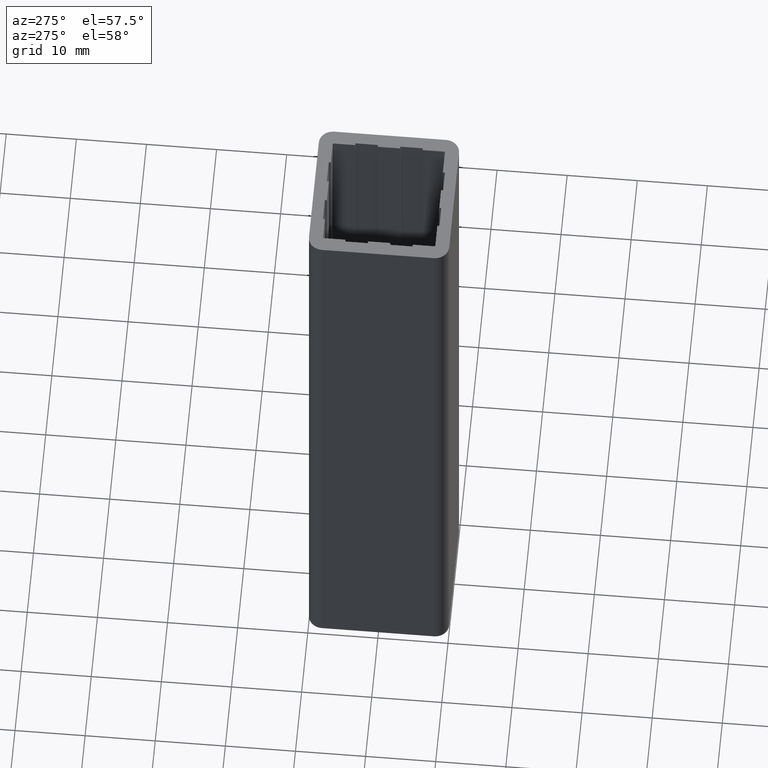
[diagram: clean part render]
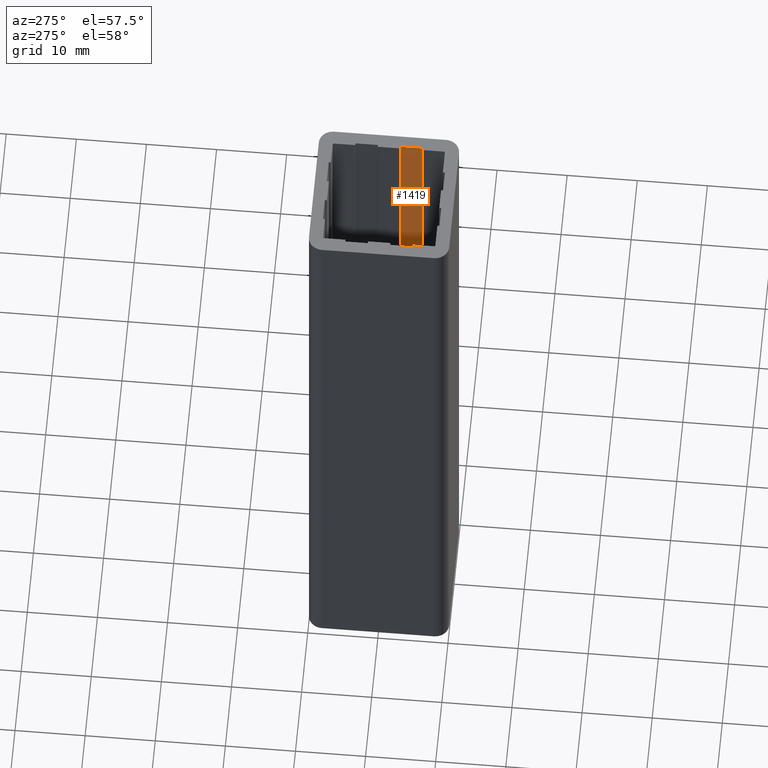
[diagram: same view with one face highlighted and labeled with its STEP entity id]
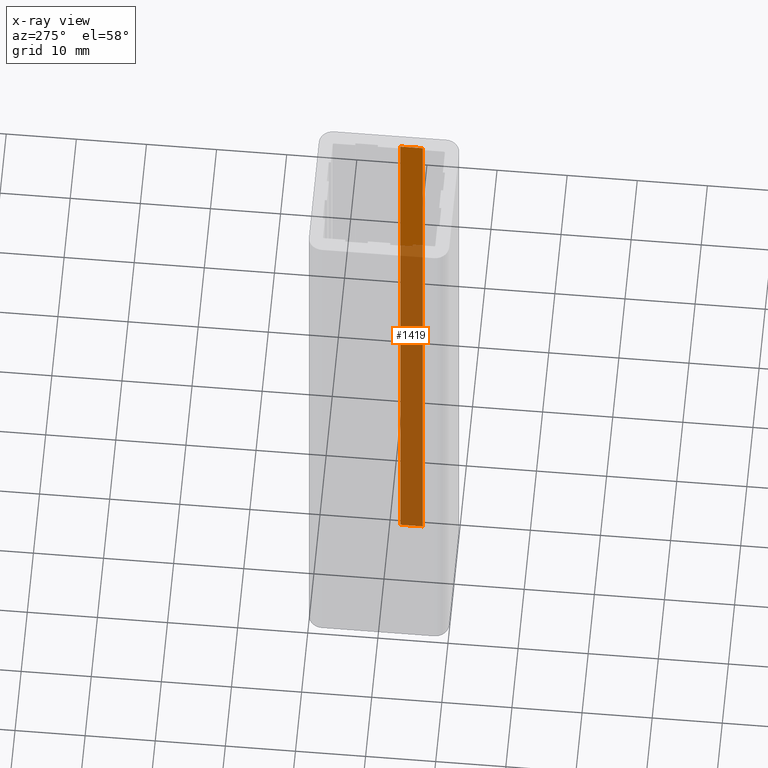
[diagram: x-ray of the same camera — body ghosted, the highlighted face saturated]
A machine part, auxiliary view. The second image highlights one B-rep face of the part: STEP entity #1419.
The next image is the same camera in x-ray: the body ghosted, the highlighted face saturated — about 74% of this face is hidden behind the body in this view.
In plain terms, the highlighted planar face has unit normal (-1, 0, 0).
Its self-contained STEP definition (entity closure, byte-faithful):
#1363=CARTESIAN_POINT('',(-1.700000000000046,-1.599999999999909,0.0));
#1364=VERTEX_POINT('',#1363);
#1371=CARTESIAN_POINT('',(-1.700000000000046,-1.599999999999909,100.0));
#1372=VERTEX_POINT('',#1371);
#1373=CARTESIAN_POINT('',(-1.700000000000046,-1.599999999999909,0.0));
#1374=DIRECTION('',(0.0,0.0,1.0));
#1375=VECTOR('',#1374,100.0);
#1376=LINE('',#1373,#1375);
#1377=EDGE_CURVE('',#1364,#1372,#1376,.T.);
#1389=CARTESIAN_POINT('',(-1.700000000000046,-1.599999999999909,0.0));
#1390=DIRECTION('',(-1.0,0.0,0.0));
#1391=DIRECTION('',(0.0,-1.0,0.0));
#1392=AXIS2_PLACEMENT_3D('',#1389,#1390,#1391);
#1393=PLANE('',#1392);
#1394=CARTESIAN_POINT('',(-1.699999999999932,-4.799999999999955,0.0));
#1395=VERTEX_POINT('',#1394);
#1396=CARTESIAN_POINT('',(-1.700000000000046,-1.599999999999954,0.0));
#1397=DIRECTION('',(0.0,-1.0,0.0));
#1398=VECTOR('',#1397,3.200000000000000);
#1399=LINE('',#1396,#1398);
#1400=EDGE_CURVE('',#1364,#1395,#1399,.T.);
#1401=ORIENTED_EDGE('',*,*,#1400,.T.);
#1402=CARTESIAN_POINT('',(-1.699999999999932,-4.799999999999955,100.0));
#1403=VERTEX_POINT('',#1402);
#1404=CARTESIAN_POINT('',(-1.699999999999932,-4.799999999999955,0.0));
#1405=DIRECTION('',(0.0,0.0,1.0));
#1406=VECTOR('',#1405,100.0);
#1407=LINE('',#1404,#1406);
#1408=EDGE_CURVE('',#1395,#1403,#1407,.T.);
#1409=ORIENTED_EDGE('',*,*,#1408,.T.);
#1410=CARTESIAN_POINT('',(-1.700000000000046,-1.599999999999954,100.0));
#1411=DIRECTION('',(0.0,-1.0,0.0));
#1412=VECTOR('',#1411,3.200000000000000);
#1413=LINE('',#1410,#1412);
#1414=EDGE_CURVE('',#1372,#1403,#1413,.T.);
#1415=ORIENTED_EDGE('',*,*,#1414,.F.);
#1416=ORIENTED_EDGE('',*,*,#1377,.F.);
#1417=EDGE_LOOP('',(#1401,#1409,#1415,#1416));
#1418=FACE_OUTER_BOUND('',#1417,.T.);
#1419=ADVANCED_FACE('',(#1418),#1393,.T.);